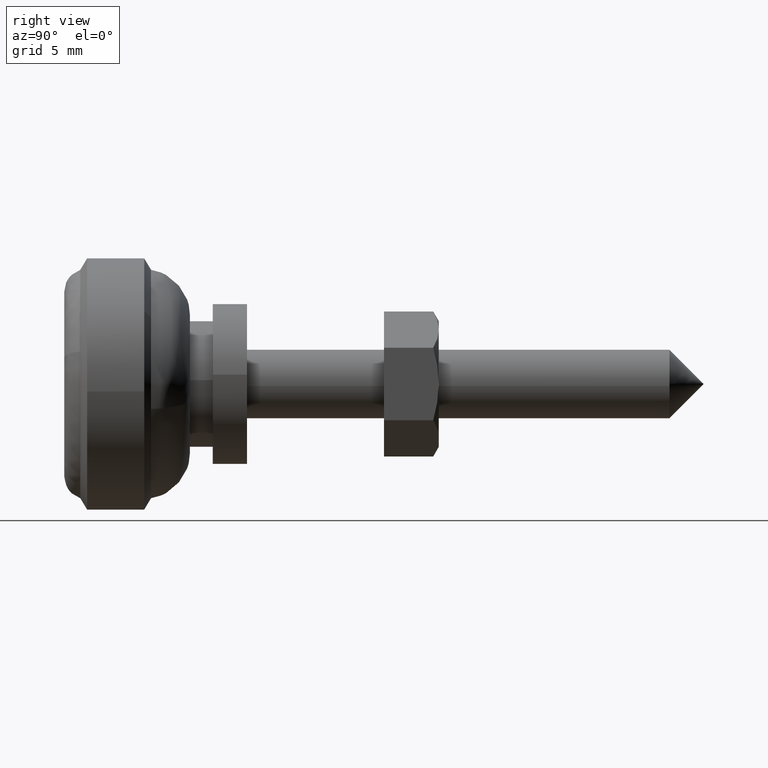
[diagram: clean part render]
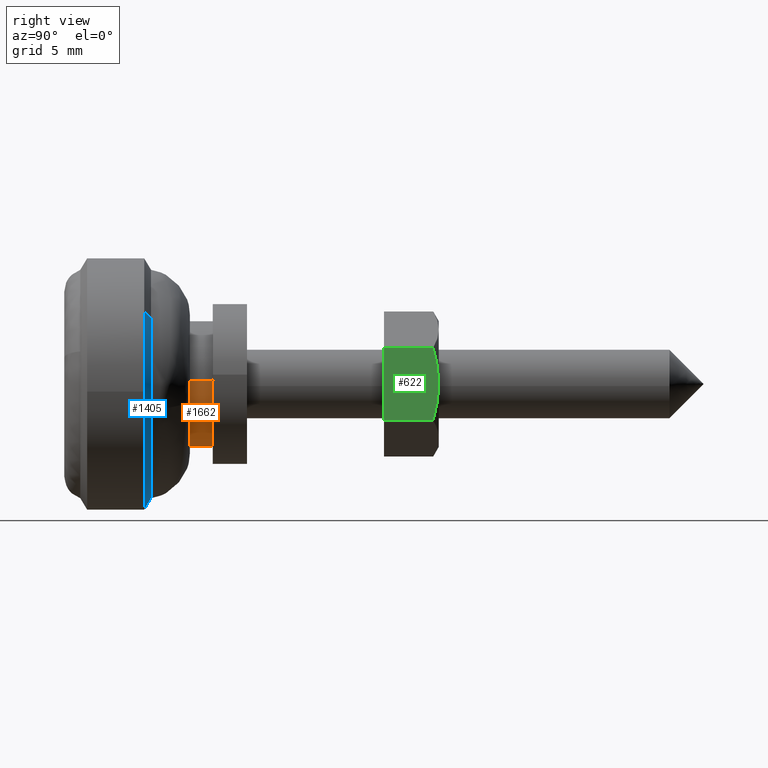
[diagram: same view with three faces highlighted in distinct colors, each labeled with its STEP entity id]
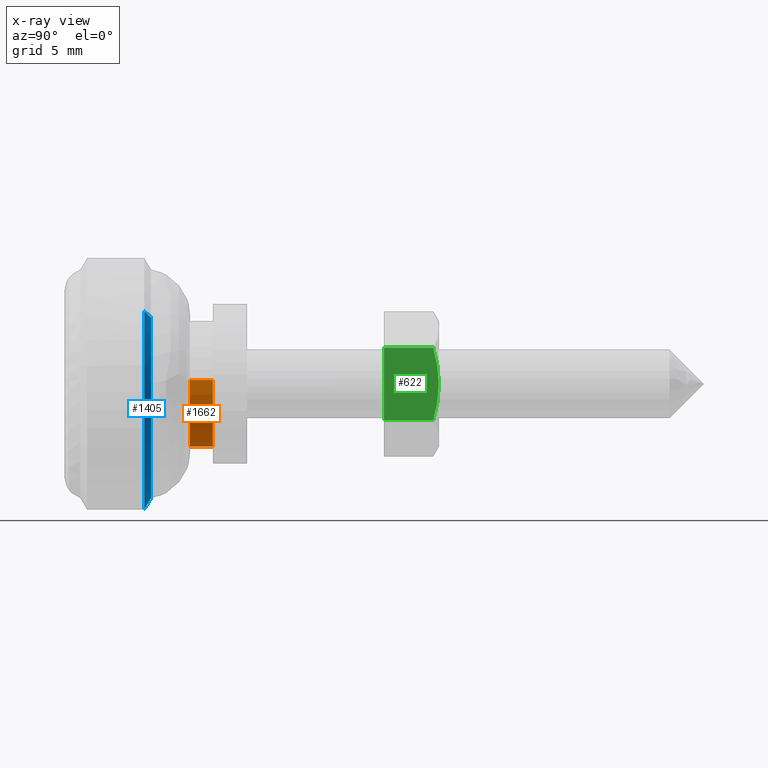
[diagram: x-ray of the same camera — body ghosted, the three highlighted faces saturated]
A machine part, right view with three faces highlighted in distinct colors.
The next image is the same camera in x-ray (body ghosted, the three faces saturated) — at least one of them is partly hidden behind the body in this view.
Their STEP definitions:

[orange] entity #1662 — the highlighted face is a freeform B-spline surface patch.
#1499=CARTESIAN_POINT('',(-2.499999999999945,2.730776197497295,-0.324594145329539));
#1500=VERTEX_POINT('',#1499);
#1518=CARTESIAN_POINT('',(-2.499999999999945,-2.744870695658397,0.167883483749245));
#1519=VERTEX_POINT('',#1518);
#1533=CARTESIAN_POINT('',(-1.500000000000055,-2.744870695658398,0.167883483749245));
#1534=VERTEX_POINT('',#1533);
#1535=CARTESIAN_POINT('',(-2.499999999999945,-2.744870695658397,0.167883483749245));
#1536=CARTESIAN_POINT('',(-1.500000000000055,-2.744870695658398,0.167883483749245));
#1537=QUASI_UNIFORM_CURVE('',1,(#1535,#1536),.UNSPECIFIED.,.F.,.U.);
#1538=EDGE_CURVE('',#1519,#1534,#1537,.T.);
#1555=CARTESIAN_POINT('',(-1.500000000000055,2.730776197497295,-0.324594145329538));
#1556=VERTEX_POINT('',#1555);
#1572=CARTESIAN_POINT('',(-2.499999999999945,2.730776197497295,-0.324594145329539));
#1573=CARTESIAN_POINT('',(-1.500000000000055,2.730776197497295,-0.324594145329538));
#1574=QUASI_UNIFORM_CURVE('',1,(#1572,#1573),.UNSPECIFIED.,.F.,.U.);
#1575=EDGE_CURVE('',#1500,#1556,#1574,.T.);
#1580=CARTESIAN_POINT('',(-2.524999999999943,-2.744870695660134,0.167883483720857));
#1581=CARTESIAN_POINT('',(-2.524999999999943,-2.912754179380990,-2.576987211939278));
#1582=CARTESIAN_POINT('',(-2.524999999999943,-0.167883483720857,-2.744870695660134));
#1583=CARTESIAN_POINT('',(-2.524999999999943,2.424244599808628,-2.903412041014450));
#1584=CARTESIAN_POINT('',(-2.524999999999943,2.730776197500084,-0.324594145306086));
#1585=CARTESIAN_POINT('',(-1.474375000000057,-2.744870695660134,0.167883483720857));
#1586=CARTESIAN_POINT('',(-1.474375000000058,-2.912754179380990,-2.576987211939278));
#1587=CARTESIAN_POINT('',(-1.474375000000057,-0.167883483720857,-2.744870695660134));
#1588=CARTESIAN_POINT('',(-1.474375000000058,2.424244599808628,-2.903412041014450));
#1589=CARTESIAN_POINT('',(-1.474375000000058,2.730776197500084,-0.324594145306086));
#1597=(BOUNDED_SURFACE()B_SPLINE_SURFACE(2,1,((#1580,#1585),(#1581,#1586),(#1582,#1587),(#1583,#1588),(#1584,#1589)),.UNSPECIFIED.,.F.,.F.,.U.)B_SPLINE_SURFACE_WITH_KNOTS((3,2,3),(2,2),(0.0,4.556349186104046,8.930444404763930),(0.0,1.0),.UNSPECIFIED.)GEOMETRIC_REPRESENTATION_ITEM()RATIONAL_B_SPLINE_SURFACE(((1.0,1.0),(0.707106781186548,0.707106781186548),(1.0,1.0),(0.718822509939086,0.718822509939086),(0.977505800795127,0.977505800795127)))REPRESENTATION_ITEM('')SURFACE());
#1598=CARTESIAN_POINT('',(-2.499999999999945,0.0,-2.750000000000000));
#1599=VERTEX_POINT('',#1598);
#1600=CARTESIAN_POINT('',(-2.499999999999945,0.0,-2.750000000000000));
#1601=CARTESIAN_POINT('',(-2.499999999999946,2.442479946324009,-2.750000000000000));
#1602=CARTESIAN_POINT('',(-2.499999999999945,2.730776197497296,-0.324594145329539));
#1610=(BOUNDED_CURVE()B_SPLINE_CURVE(2,(#1600,#1601,#1602),.UNSPECIFIED.,.F.,.U.)B_SPLINE_CURVE_WITH_KNOTS((3,3),(0.500000000000000,0.729562473512741),.UNSPECIFIED.)CURVE()GEOMETRIC_REPRESENTATION_ITEM()RATIONAL_B_SPLINE_CURVE((1.0,0.731050832856301,0.956026754182195))REPRESENTATION_ITEM(''));
#1611=EDGE_CURVE('',#1599,#1500,#1610,.T.);
#1612=ORIENTED_EDGE('',*,*,#1611,.T.);
#1613=ORIENTED_EDGE('',*,*,#1575,.T.);
#1614=CARTESIAN_POINT('',(-1.500000000000055,0.0,-2.750000000000000));
#1615=VERTEX_POINT('',#1614);
#1616=CARTESIAN_POINT('',(-1.500000000000055,0.0,-2.750000000000000));
#1617=CARTESIAN_POINT('',(-1.500000000000055,2.442479946324011,-2.749999999999999));
#1618=CARTESIAN_POINT('',(-1.500000000000055,2.730776197497295,-0.324594145329538));
#1626=(BOUNDED_CURVE()B_SPLINE_CURVE(2,(#1616,#1617,#1618),.UNSPECIFIED.,.F.,.U.)B_SPLINE_CURVE_WITH_KNOTS((3,3),(0.0,0.229562473512741),.UNSPECIFIED.)CURVE()GEOMETRIC_REPRESENTATION_ITEM()RATIONAL_B_SPLINE_CURVE((1.0,0.731050832856301,0.956026754182196))REPRESENTATION_ITEM(''));
#1627=EDGE_CURVE('',#1615,#1556,#1626,.T.);
#1628=ORIENTED_EDGE('',*,*,#1627,.F.);
#1629=CARTESIAN_POINT('',(-1.500000000000055,-2.744870695658398,0.167883483749245));
#1630=CARTESIAN_POINT('',(-1.500000000000055,-2.750000000000000,0.084020099099588));
#1631=CARTESIAN_POINT('',(-1.500000000000055,-2.750000000000000,0.0));
#1632=CARTESIAN_POINT('',(-1.500000000000055,-2.750000000000000,-2.750000000000000));
#1633=CARTESIAN_POINT('',(-1.500000000000055,0.0,-2.750000000000000));
#1641=(BOUNDED_CURVE()B_SPLINE_CURVE(2,(#1629,#1630,#1631,#1632,#1633),.UNSPECIFIED.,.F.,.U.)B_SPLINE_CURVE_WITH_KNOTS((3,2,3),(0.739332962238399,0.750000000000000,1.0),.UNSPECIFIED.)CURVE()GEOMETRIC_REPRESENTATION_ITEM()RATIONAL_B_SPLINE_CURVE((0.976072041665552,0.987502787899200,1.0,0.707106781186548,1.0))REPRESENTATION_ITEM(''));
#1642=EDGE_CURVE('',#1534,#1615,#1641,.T.);
#1643=ORIENTED_EDGE('',*,*,#1642,.F.);
#1644=ORIENTED_EDGE('',*,*,#1538,.F.);
#1645=CARTESIAN_POINT('',(-2.499999999999945,-2.744870695658397,0.167883483749245));
#1646=CARTESIAN_POINT('',(-2.499999999999944,-2.750000000000000,0.084020099099588));
#1647=CARTESIAN_POINT('',(-2.499999999999945,-2.750000000000000,0.0));
#1648=CARTESIAN_POINT('',(-2.499999999999945,-2.750000000000000,-2.750000000000000));
#1649=CARTESIAN_POINT('',(-2.499999999999945,0.0,-2.750000000000000));
#1657=(BOUNDED_CURVE()B_SPLINE_CURVE(2,(#1645,#1646,#1647,#1648,#1649),.UNSPECIFIED.,.F.,.U.)B_SPLINE_CURVE_WITH_KNOTS((3,2,3),(0.239332962238399,0.250000000000000,0.500000000000000),.UNSPECIFIED.)CURVE()GEOMETRIC_REPRESENTATION_ITEM()RATIONAL_B_SPLINE_CURVE((0.976072041665553,0.987502787899200,1.0,0.707106781186548,1.0))REPRESENTATION_ITEM(''));
#1658=EDGE_CURVE('',#1519,#1599,#1657,.T.);
#1659=ORIENTED_EDGE('',*,*,#1658,.T.);
#1660=EDGE_LOOP('',(#1612,#1613,#1628,#1643,#1644,#1659));
#1661=FACE_OUTER_BOUND('',#1660,.T.);
#1662=ADVANCED_FACE('',(#1661),#1597,.T.);

[blue] entity #1405 — the highlighted face is a freeform B-spline surface patch.
#1185=CARTESIAN_POINT('',(-4.500000000000499,4.652970815965499,-2.932552230699826));
#1186=VERTEX_POINT('',#1185);
#1202=CARTESIAN_POINT('',(-4.500000000000000,0.0,-5.500000000000000));
#1203=VERTEX_POINT('',#1202);
#1204=CARTESIAN_POINT('',(-4.500000000000499,4.652970815965499,-2.932552230699826));
#1205=CARTESIAN_POINT('',(-4.499999999999999,3.034827272643964,-5.500000000000000));
#1206=CARTESIAN_POINT('',(-4.500000000000000,0.0,-5.500000000000000));
#1214=(BOUNDED_CURVE()B_SPLINE_CURVE(2,(#1204,#1205,#1206),.UNSPECIFIED.,.F.,.U.)B_SPLINE_CURVE_WITH_KNOTS((3,3),(0.341207208228338,0.500000000000000),.UNSPECIFIED.)CURVE()GEOMETRIC_REPRESENTATION_ITEM()RATIONAL_B_SPLINE_CURVE((0.864256437768136,0.813962672374495,1.0))REPRESENTATION_ITEM(''));
#1215=EDGE_CURVE('',#1186,#1203,#1214,.T.);
#1217=CARTESIAN_POINT('',(-4.500000000000000,-5.489741391319532,-0.335766967453755));
#1218=VERTEX_POINT('',#1217);
#1219=CARTESIAN_POINT('',(-4.500000000000000,0.0,-5.500000000000000));
#1220=CARTESIAN_POINT('',(-4.500000000000001,-5.173883367958606,-5.500000000000000));
#1221=CARTESIAN_POINT('',(-4.500000000000002,-5.489741391319532,-0.335766967453755));
#1229=(BOUNDED_CURVE()B_SPLINE_CURVE(2,(#1219,#1220,#1221),.UNSPECIFIED.,.F.,.U.)B_SPLINE_CURVE_WITH_KNOTS((3,3),(0.500000000000000,0.739332962241212),.UNSPECIFIED.)CURVE()GEOMETRIC_REPRESENTATION_ITEM()RATIONAL_B_SPLINE_CURVE((1.0,0.719603993284052,0.976072041671581))REPRESENTATION_ITEM(''));
#1230=EDGE_CURVE('',#1203,#1218,#1229,.T.);
#1286=CARTESIAN_POINT('',(-4.500000000000460,-4.477635350949456,3.193866256425934));
#1287=VERTEX_POINT('',#1286);
#1288=CARTESIAN_POINT('',(-4.500000000000001,-5.489741391319532,-0.335766967453755));
#1289=CARTESIAN_POINT('',(-4.500000000000000,-5.500000000000001,-0.168040198154314));
#1290=CARTESIAN_POINT('',(-4.500000000000000,-5.500000000000000,0.0));
#1291=CARTESIAN_POINT('',(-4.500000000000001,-5.499999999999999,1.760563880376065));
#1292=CARTESIAN_POINT('',(-4.500000000000460,-4.477635350949457,3.193866256425934));
#1300=(BOUNDED_CURVE()B_SPLINE_CURVE(2,(#1288,#1289,#1290,#1291,#1292),.UNSPECIFIED.,.F.,.U.)B_SPLINE_CURVE_WITH_KNOTS((3,2,3),(0.739332962241211,0.750000000000000,0.849924290332345),.UNSPECIFIED.)CURVE()GEOMETRIC_REPRESENTATION_ITEM()RATIONAL_B_SPLINE_CURVE((0.976072041671579,0.987502787902495,1.0,0.882931411867638,0.859446788449963))REPRESENTATION_ITEM(''));
#1301=EDGE_CURVE('',#1218,#1287,#1300,.T.);
#1319=CARTESIAN_POINT('',(-4.192481050892945,4.219371817320353,-2.659274842752262));
#1320=CARTESIAN_POINT('',(-4.192481050892944,4.143264513822527,-2.780031451399232));
#1321=CARTESIAN_POINT('',(-4.192481050892943,4.060375436531930,-2.896237651937502));
#1322=CARTESIAN_POINT('',(-4.192481050892943,1.164137784594428,-6.956613088469432));
#1323=CARTESIAN_POINT('',(-4.192481050892943,-2.896237651937502,-4.060375436531930));
#1324=CARTESIAN_POINT('',(-4.192481050892943,-6.956613088469432,-1.164137784594428));
#1325=CARTESIAN_POINT('',(-4.192481050892943,-4.060375436531930,2.896237651937502));
#1326=CARTESIAN_POINT('',(-4.507687973727677,4.663810790939375,-2.939384165384630));
#1327=CARTESIAN_POINT('',(-4.507687973727677,4.579686878970918,-3.072860426512678));
#1328=CARTESIAN_POINT('',(-4.507687973727677,4.488066848820456,-3.201306971521987));
#1329=CARTESIAN_POINT('',(-4.507687973727676,1.286759877298469,-7.689373820342443));
#1330=CARTESIAN_POINT('',(-4.507687973727677,-3.201306971521987,-4.488066848820456));
#1331=CARTESIAN_POINT('',(-4.507687973727676,-7.689373820342443,-1.286759877298469));
#1332=CARTESIAN_POINT('',(-4.507687973727677,-4.488066848820456,3.201306971521987));
#1340=(BOUNDED_SURFACE()B_SPLINE_SURFACE(2,1,((#1319,#1326),(#1320,#1327),(#1321,#1328),(#1322,#1329),(#1323,#1330),(#1324,#1331),(#1325,#1332)),.UNSPECIFIED.,.F.,.F.,.U.)B_SPLINE_SURFACE_WITH_KNOTS((3,2,2,3),(2,2),(0.0,0.365357125017704,9.499285250460281,18.633213375902859),(0.0,1.0),.UNSPECIFIED.)GEOMETRIC_REPRESENTATION_ITEM()RATIONAL_B_SPLINE_SURFACE(((0.977505800795127,0.977505800795127),(0.988284271247462,0.988284271247462),(1.0,1.0),(0.707106781186548,0.707106781186548),(1.0,1.0),(0.707106781186548,0.707106781186548),(1.0,1.0)))REPRESENTATION_ITEM('')SURFACE());
#1341=CARTESIAN_POINT('',(-4.199981513081600,4.229947402673355,-2.665940144913114));
#1342=VERTEX_POINT('',#1341);
#1343=CARTESIAN_POINT('',(-4.199981513081505,0.0,-4.999969188469150));
#1344=VERTEX_POINT('',#1343);
#1345=CARTESIAN_POINT('',(-4.199981513081600,4.229947402673355,-2.665940144913114));
#1346=CARTESIAN_POINT('',(-4.199981513081506,2.758916882840985,-4.999969188469150));
#1347=CARTESIAN_POINT('',(-4.199981513081505,0.0,-4.999969188469150));
#1355=(BOUNDED_CURVE()B_SPLINE_CURVE(2,(#1345,#1346,#1347),.UNSPECIFIED.,.F.,.U.)B_SPLINE_CURVE_WITH_KNOTS((3,3),(0.341207208227659,0.500000000000000),.UNSPECIFIED.)CURVE()GEOMETRIC_REPRESENTATION_ITEM()RATIONAL_B_SPLINE_CURVE((0.864256437768566,0.813962672373699,1.0))REPRESENTATION_ITEM(''));
#1356=EDGE_CURVE('',#1342,#1344,#1355,.T.);
#1357=ORIENTED_EDGE('',*,*,#1356,.T.);
#1358=CARTESIAN_POINT('',(-4.199983975121162,-4.878818521110093,-1.093995182422166));
#1359=VERTEX_POINT('',#1358);
#1360=CARTESIAN_POINT('',(-4.199981513081505,0.0,-4.999969188469150));
#1361=CARTESIAN_POINT('',(-4.199982744101333,-4.002967594218278,-4.999969229335280));
#1362=CARTESIAN_POINT('',(-4.199983975121163,-4.878818521110093,-1.093995182422166));
#1370=(BOUNDED_CURVE()B_SPLINE_CURVE(2,(#1360,#1361,#1362),.UNSPECIFIED.,.F.,.U.)B_SPLINE_CURVE_WITH_KNOTS((3,3),(0.500000000000000,0.712564061920407),.UNSPECIFIED.)CURVE()GEOMETRIC_REPRESENTATION_ITEM()RATIONAL_B_SPLINE_CURVE((1.0,0.750965710800280,0.925417342158591))REPRESENTATION_ITEM(''));
#1371=EDGE_CURVE('',#1344,#1359,#1370,.T.);
#1372=ORIENTED_EDGE('',*,*,#1371,.T.);
#1373=CARTESIAN_POINT('',(-4.199982376297582,-4.070552838719838,2.903497122367569));
#1374=VERTEX_POINT('',#1373);
#1375=CARTESIAN_POINT('',(-4.199983975121163,-4.878818521110093,-1.093995182422166));
#1376=CARTESIAN_POINT('',(-4.199983865979260,-4.999969536807089,-0.553705872627288));
#1377=CARTESIAN_POINT('',(-4.199983729653858,-4.999969516624610,-0.000000073583491));
#1378=CARTESIAN_POINT('',(-4.199983335601284,-4.999969458286563,1.600502777281489));
#1379=CARTESIAN_POINT('',(-4.199982376297582,-4.070552838719838,2.903497122367570));
#1387=(BOUNDED_CURVE()B_SPLINE_CURVE(2,(#1375,#1376,#1377,#1378,#1379),.UNSPECIFIED.,.F.,.U.)B_SPLINE_CURVE_WITH_KNOTS((3,2,3),(0.712564061920407,0.750000000000000,0.849924294858516),.UNSPECIFIED.)CURVE()GEOMETRIC_REPRESENTATION_ITEM()RATIONAL_B_SPLINE_CURVE((0.925417342158591,0.956141070386268,1.0,0.882931406564899,0.859446786322444))REPRESENTATION_ITEM(''));
#1388=EDGE_CURVE('',#1359,#1374,#1387,.T.);
#1389=ORIENTED_EDGE('',*,*,#1388,.T.);
#1390=CARTESIAN_POINT('',(-4.199982376297582,-4.070552838719838,2.903497122367569));
#1391=CARTESIAN_POINT('',(-4.500000000000460,-4.477635350949456,3.193866256425934));
#1392=QUASI_UNIFORM_CURVE('',1,(#1390,#1391),.UNSPECIFIED.,.F.,.U.);
#1393=EDGE_CURVE('',#1374,#1287,#1392,.T.);
#1394=ORIENTED_EDGE('',*,*,#1393,.T.);
#1395=ORIENTED_EDGE('',*,*,#1301,.F.);
#1396=ORIENTED_EDGE('',*,*,#1230,.F.);
#1397=ORIENTED_EDGE('',*,*,#1215,.F.);
#1398=CARTESIAN_POINT('',(-4.199981513081600,4.229947402673355,-2.665940144913114));
#1399=CARTESIAN_POINT('',(-4.500000000000499,4.652970815965499,-2.932552230699826));
#1400=QUASI_UNIFORM_CURVE('',1,(#1398,#1399),.UNSPECIFIED.,.F.,.U.);
#1401=EDGE_CURVE('',#1342,#1186,#1400,.T.);
#1402=ORIENTED_EDGE('',*,*,#1401,.F.);
#1403=EDGE_LOOP('',(#1357,#1372,#1389,#1394,#1395,#1396,#1397,#1402));
#1404=FACE_OUTER_BOUND('',#1403,.T.);
#1405=ADVANCED_FACE('',(#1404),#1340,.T.);

[green] entity #622 — the highlighted face is a freeform B-spline surface patch.
#306=CARTESIAN_POINT('',(8.400000000000109,-2.750000000000200,0.0));
#307=VERTEX_POINT('',#306);
#323=CARTESIAN_POINT('',(8.154359666351001,-2.750000000000200,-1.587800000000000));
#324=VERTEX_POINT('',#323);
#325=CARTESIAN_POINT('',(8.154359666351009,-2.750000000000200,-1.587800000000004));
#326=CARTESIAN_POINT('',(8.191656433659968,-2.750000000000200,-1.458602975491438));
#327=CARTESIAN_POINT('',(8.225909250811981,-2.750000000000199,-1.328161167835950));
#328=CARTESIAN_POINT('',(8.286637740210878,-2.750000000000200,-1.064477524668870));
#329=CARTESIAN_POINT('',(8.312851708046509,-2.750000000000200,-0.932308949044107));
#330=CARTESIAN_POINT('',(8.376937781229927,-2.750000000000200,-0.534809478305121));
#331=CARTESIAN_POINT('',(8.399999555902159,-2.750000000000201,-0.268312556065750));
#332=CARTESIAN_POINT('',(8.400000000000109,-2.750000000000200,0.0));
#333=B_SPLINE_CURVE_WITH_KNOTS('',3,(#325,#326,#327,#328,#329,#330,#331,#332),.UNSPECIFIED.,.F.,.U.,(4,2,2,4),(0.0,0.125000000000000,0.250000000000000,0.499858225120818),.UNSPECIFIED.);
#334=EDGE_CURVE('',#324,#307,#333,.T.);
#402=CARTESIAN_POINT('',(8.154388533801001,-2.750000000000200,1.587700000000000));
#403=VERTEX_POINT('',#402);
#404=CARTESIAN_POINT('',(8.400000000000109,-2.750000000000200,0.0));
#405=CARTESIAN_POINT('',(8.399999999873868,-2.750000000000200,0.000152246384218));
#406=CARTESIAN_POINT('',(8.399999992700657,-2.750000000000200,0.000304493168807));
#407=CARTESIAN_POINT('',(8.399987106623499,-2.750000000000199,0.134690172560451));
#408=CARTESIAN_POINT('',(8.394269571207346,-2.750000000000200,0.269372736546041));
#409=CARTESIAN_POINT('',(8.371563746134232,-2.750000000000201,0.539625218449659));
#410=CARTESIAN_POINT('',(8.354727081532991,-2.750000000000200,0.673505572983985));
#411=CARTESIAN_POINT('',(8.290174515834924,-2.750000000000200,1.071033999081570));
#412=CARTESIAN_POINT('',(8.228479685404468,-2.750000000000200,1.331034095906327));
#413=CARTESIAN_POINT('',(8.154388533801006,-2.750000000000200,1.587700000000002));
#414=B_SPLINE_CURVE_WITH_KNOTS('',3,(#404,#405,#406,#407,#408,#409,#410,#411,#412,#413),.UNSPECIFIED.,.F.,.U.,(4,2,2,2,4),(0.499858225176360,0.500000000000000,0.625000000000000,0.750000000000000,1.0),.UNSPECIFIED.);
#415=EDGE_CURVE('',#307,#403,#414,.T.);
#516=CARTESIAN_POINT('',(6.0,-2.750000000000200,-1.587800000000000));
#517=VERTEX_POINT('',#516);
#523=CARTESIAN_POINT('',(6.0,-2.750000000000200,1.587700000000000));
#524=VERTEX_POINT('',#523);
#525=CARTESIAN_POINT('',(6.0,-2.750000000000200,1.587700000000000));
#526=CARTESIAN_POINT('',(6.0,-2.750000000000200,-1.587800000000000));
#527=QUASI_UNIFORM_CURVE('',1,(#525,#526),.UNSPECIFIED.,.F.,.U.);
#528=EDGE_CURVE('',#524,#517,#527,.T.);
#597=CARTESIAN_POINT('',(8.154359666351001,-2.750000000000200,-1.587800000000000));
#598=CARTESIAN_POINT('',(6.0,-2.750000000000200,-1.587800000000000));
#599=QUASI_UNIFORM_CURVE('',1,(#597,#598),.UNSPECIFIED.,.F.,.U.);
#600=EDGE_CURVE('',#324,#517,#599,.T.);
#606=CARTESIAN_POINT('',(5.880120030375116,-2.750000000000200,-1.746416248654587));
#607=CARTESIAN_POINT('',(5.880120030375116,-2.750000000000200,1.746316305436952));
#608=CARTESIAN_POINT('',(8.519879519013877,-2.750000000000200,-1.746416248654587));
#609=CARTESIAN_POINT('',(8.519879519013877,-2.750000000000200,1.746316305436952));
#610=B_SPLINE_SURFACE_WITH_KNOTS('',1,1,((#606,#608),(#607,#609)),.UNSPECIFIED.,.F.,.F.,.U.,(2,2),(2,2),(0.0,3.492732554091540),(0.0,2.639759488638760),.UNSPECIFIED.);
#611=ORIENTED_EDGE('',*,*,#600,.F.);
#612=ORIENTED_EDGE('',*,*,#334,.T.);
#613=ORIENTED_EDGE('',*,*,#415,.T.);
#614=CARTESIAN_POINT('',(8.154388533801001,-2.750000000000200,1.587700000000000));
#615=CARTESIAN_POINT('',(6.0,-2.750000000000200,1.587700000000000));
#616=QUASI_UNIFORM_CURVE('',1,(#614,#615),.UNSPECIFIED.,.F.,.U.);
#617=EDGE_CURVE('',#403,#524,#616,.T.);
#618=ORIENTED_EDGE('',*,*,#617,.T.);
#619=ORIENTED_EDGE('',*,*,#528,.T.);
#620=EDGE_LOOP('',(#611,#612,#613,#618,#619));
#621=FACE_OUTER_BOUND('',#620,.T.);
#622=ADVANCED_FACE('',(#621),#610,.F.);